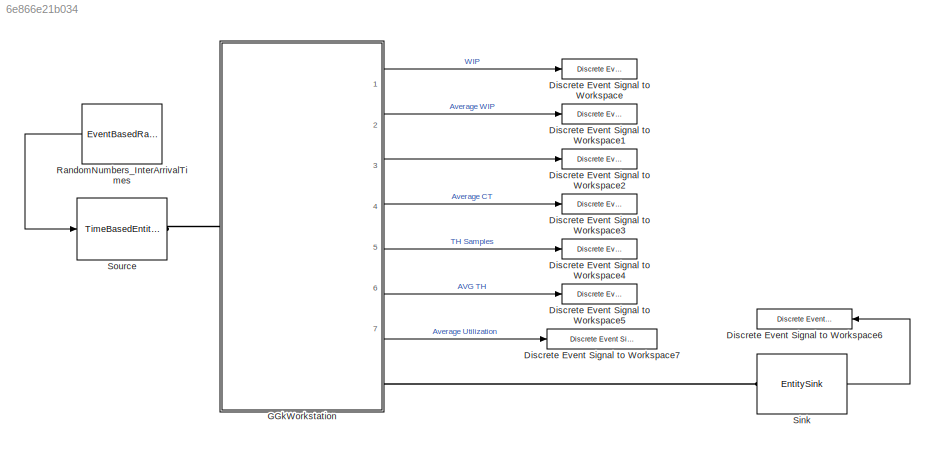
MODEL slx_6e866e21b034
KIND model
CONFIG AbsTol = auto
CONFIG FixedStep = auto
CONFIG InitFcn = se_randomizeseeds(gcs, 'Mode', 'All')
CONFIG MaxStep = auto
CONFIG MinStep = auto
CONFIG RelTol = 1e-3
CONFIG SampleTimeConstraint = Unconstrained
CONFIG Solver = ode45
CONFIG SolverMode = Auto
CONFIG SolverName = ode45
CONFIG StartTime = 0.0
CONFIG StopTime = 500000
BLOCK [Reference] Discrete Event Signal to Workspace  REF=simeventslib/SimEvents
Sinks/Discrete Event Signal
to Workspace
  Decimation = 1
  MaxDataPoints = inf
  Ports = [1]
  SaveFormat = Structure With Time
  SourceBlock = simeventslib/SimEvents\nSinks/Discrete Event Signal\nto Workspace
  SourceType = Discrete Event Signal to Workspace
  VariableName = WIP_samples
  isMonitorOnly = off
  isRecordIC = off
BLOCK [Reference] Discrete Event Signal to Workspace1  REF=simeventslib/SimEvents
Sinks/Discrete Event Signal
to Workspace
  Decimation = 1
  MaxDataPoints = inf
  Ports = [1]
  SaveFormat = Structure With Time
  SourceBlock = simeventslib/SimEvents\nSinks/Discrete Event Signal\nto Workspace
  SourceType = Discrete Event Signal to Workspace
  VariableName = WIP_average
  isMonitorOnly = off
  isRecordIC = off
BLOCK [Reference] Discrete Event Signal to Workspace2  REF=simeventslib/SimEvents
Sinks/Discrete Event Signal
to Workspace
  Decimation = 1
  MaxDataPoints = inf
  Ports = [1]
  SaveFormat = Structure With Time
  SourceBlock = simeventslib/SimEvents\nSinks/Discrete Event Signal\nto Workspace
  SourceType = Discrete Event Signal to Workspace
  VariableName = CT_samples
  isMonitorOnly = off
  isRecordIC = off
BLOCK [Reference] Discrete Event Signal to Workspace3  REF=simeventslib/SimEvents
Sinks/Discrete Event Signal
to Workspace
  Decimation = 1
  MaxDataPoints = inf
  Ports = [1]
  SaveFormat = Structure With Time
  SourceBlock = simeventslib/SimEvents\nSinks/Discrete Event Signal\nto Workspace
  SourceType = Discrete Event Signal to Workspace
  VariableName = CT_average
  isMonitorOnly = off
  isRecordIC = off
BLOCK [Reference] Discrete Event Signal to Workspace4  REF=simeventslib/SimEvents
Sinks/Discrete Event Signal
to Workspace
  Decimation = 1
  MaxDataPoints = inf
  Ports = [1]
  SaveFormat = Structure With Time
  SourceBlock = simeventslib/SimEvents\nSinks/Discrete Event Signal\nto Workspace
  SourceType = Discrete Event Signal to Workspace
  VariableName = TH_samples
  isMonitorOnly = off
  isRecordIC = off
BLOCK [Reference] Discrete Event Signal to Workspace5  REF=simeventslib/SimEvents
Sinks/Discrete Event Signal
to Workspace
  Decimation = 1
  MaxDataPoints = inf
  Ports = [1]
  SaveFormat = Structure With Time
  SourceBlock = simeventslib/SimEvents\nSinks/Discrete Event Signal\nto Workspace
  SourceType = Discrete Event Signal to Workspace
  VariableName = TH_average
  isMonitorOnly = off
  isRecordIC = off
BLOCK [Reference] Discrete Event Signal to Workspace6  REF=simeventslib/SimEvents
Sinks/Discrete Event Signal
to Workspace
  Decimation = 1
  MaxDataPoints = inf
  Ports = [1]
  SaveFormat = Structure With Time
  SourceBlock = simeventslib/SimEvents\nSinks/Discrete Event Signal\nto Workspace
  SourceType = Discrete Event Signal to Workspace
  VariableName = nDepartures
  isMonitorOnly = off
  isRecordIC = off
BLOCK [Reference] Discrete Event Signal to Workspace7  REF=simeventslib/SimEvents
Sinks/Discrete Event Signal
to Workspace
  Decimation = 1
  MaxDataPoints = inf
  Ports = [1]
  SaveFormat = Structure With Time
  SourceBlock = simeventslib/SimEvents\nSinks/Discrete Event Signal\nto Workspace
  SourceType = Discrete Event Signal to Workspace
  VariableName = uServers_average
  isMonitorOnly = off
  isRecordIC = off
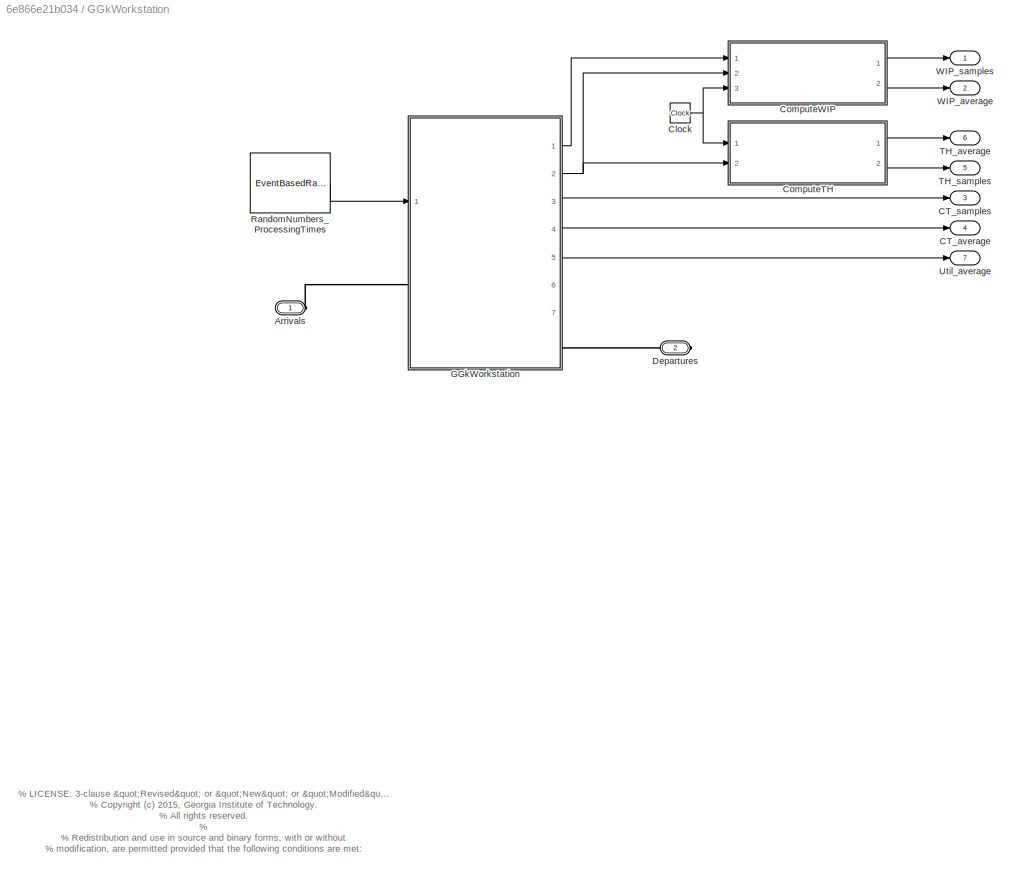
BLOCK [SubSystem] GGkWorkstation
  CopyFcn = set_param(gcb, 'LinkStatus', 'none');
  InitFcn = se_randomizeseeds(gcs, 'Mode', 'All')
  Ports = [0, 7, 0, 0, 0, 1, 1]
  RequestExecContextInheritance = off
BLOCK [PMIOPort] GGkWorkstation/Arrivals
  Port = 1
  Side = Left
BLOCK [Outport] GGkWorkstation/CT_average
  IconDisplay = Port number
  Port = 4
BLOCK [Outport] GGkWorkstation/CT_samples
  IconDisplay = Port number
  Port = 3
BLOCK [Clock] GGkWorkstation/Clock
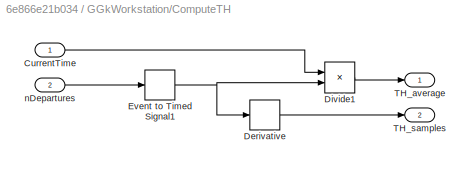
BLOCK [SubSystem] GGkWorkstation/ComputeTH
  Ports = [2, 2]
  RequestExecContextInheritance = off
BLOCK [Inport] GGkWorkstation/ComputeTH/CurrentTime
  IconDisplay = Port number
BLOCK [Derivative] GGkWorkstation/ComputeTH/Derivative
BLOCK [Product] GGkWorkstation/ComputeTH/Divide1
  InputSameDT = off
  Inputs = /*
  OutDataTypeStr = Inherit: Inherit via internal rule
  Ports = [2, 1]
  RndMeth = Floor
  SaturateOnIntegerOverflow = off
BLOCK [EventToTimedSignal] GGkWorkstation/ComputeTH/Event to Timed Signal1
  InputPortMap = u0
  OutputPortMap = o0
  Ports = [1, 1]
BLOCK [Outport] GGkWorkstation/ComputeTH/TH_average
  IconDisplay = Port number
BLOCK [Outport] GGkWorkstation/ComputeTH/TH_samples
  IconDisplay = Port number
  Port = 2
BLOCK [Inport] GGkWorkstation/ComputeTH/nDepartures
  IconDisplay = Port number
  Port = 2
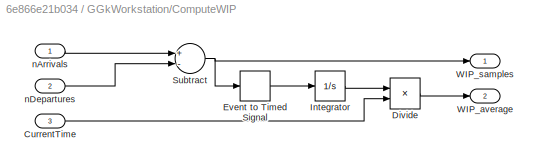
BLOCK [SubSystem] GGkWorkstation/ComputeWIP
  Ports = [3, 2]
  RequestExecContextInheritance = off
BLOCK [Inport] GGkWorkstation/ComputeWIP/CurrentTime
  IconDisplay = Port number
  Port = 3
BLOCK [Product] GGkWorkstation/ComputeWIP/Divide
  InputSameDT = off
  Inputs = */
  OutDataTypeStr = Inherit: Inherit via internal rule
  Ports = [2, 1]
  RndMeth = Floor
  SaturateOnIntegerOverflow = off
BLOCK [EventToTimedSignal] GGkWorkstation/ComputeWIP/Event to Timed Signal
  InputPortMap = u0
  OutputPortMap = o0
  Ports = [1, 1]
BLOCK [Integrator] GGkWorkstation/ComputeWIP/Integrator
  Ports = [1, 1]
BLOCK [Sum] GGkWorkstation/ComputeWIP/Subtract
  InputSameDT = off
  Inputs = +-
  OutDataTypeStr = Inherit: Inherit via internal rule
  Ports = [2, 1]
  SaturateOnIntegerOverflow = off
BLOCK [Outport] GGkWorkstation/ComputeWIP/WIP_average
  IconDisplay = Port number
  Port = 2
BLOCK [Outport] GGkWorkstation/ComputeWIP/WIP_samples
  IconDisplay = Port number
BLOCK [Inport] GGkWorkstation/ComputeWIP/nArrivals
  IconDisplay = Port number
BLOCK [Inport] GGkWorkstation/ComputeWIP/nDepartures
  IconDisplay = Port number
  Port = 2
BLOCK [PMIOPort] GGkWorkstation/Departures
  Port = 2
  Side = Right
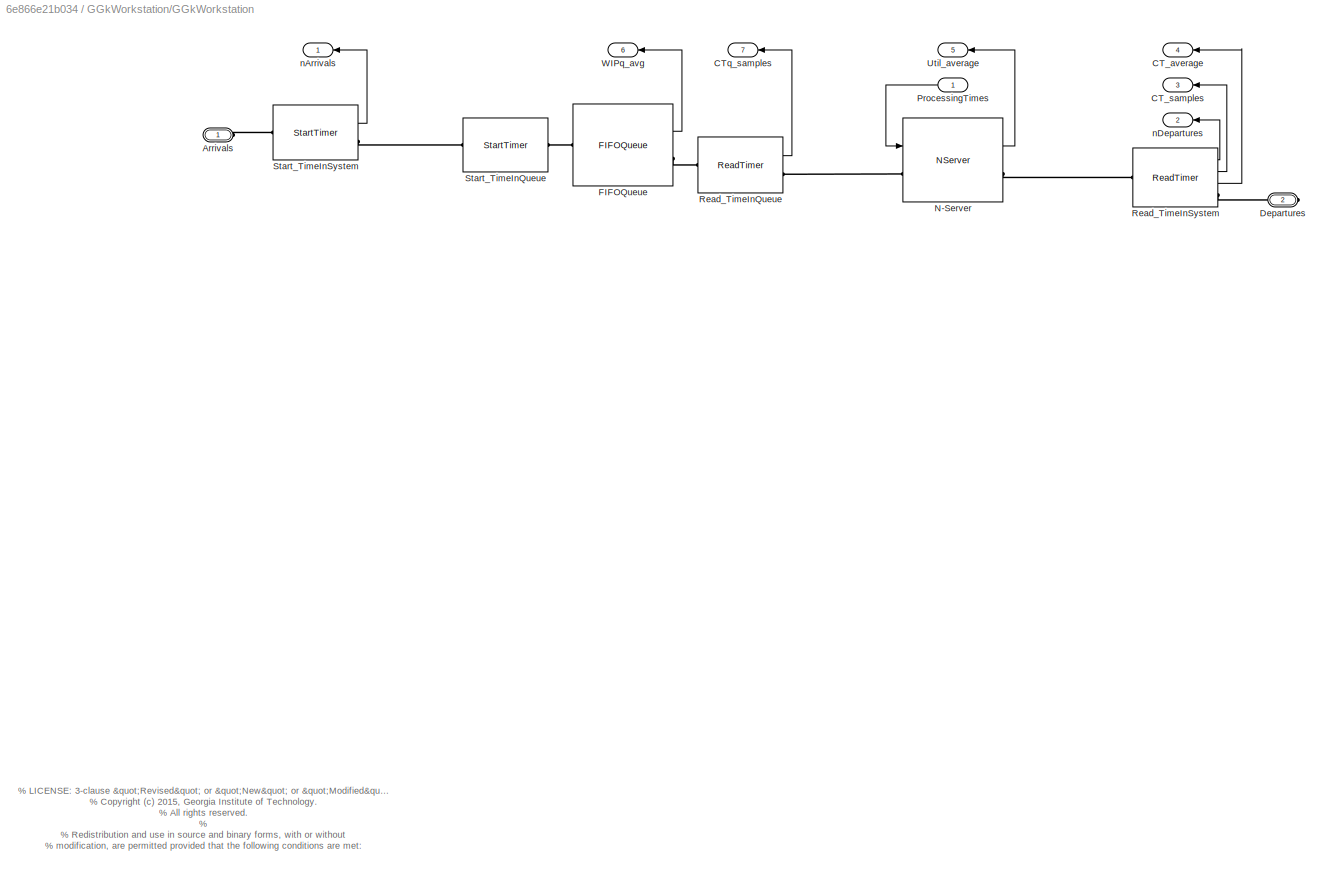
BLOCK [SubSystem] GGkWorkstation/GGkWorkstation
  Ports = [1, 7, 0, 0, 0, 1, 1]
  RequestExecContextInheritance = off
BLOCK [PMIOPort] GGkWorkstation/GGkWorkstation/Arrivals
  Port = 1
  Side = Left
BLOCK [Outport] GGkWorkstation/GGkWorkstation/CT_average
  IconDisplay = Port number
  Port = 4
BLOCK [Outport] GGkWorkstation/GGkWorkstation/CT_samples
  IconDisplay = Port number
  Port = 3
BLOCK [Outport] GGkWorkstation/GGkWorkstation/CTq_samples
  IconDisplay = Port number
  Port = 7
BLOCK [PMIOPort] GGkWorkstation/GGkWorkstation/Departures
  Port = 2
  Side = Right
BLOCK [FIFOQueue] GGkWorkstation/GGkWorkstation/FIFOQueue
  Capacity = Capacity
  OutputPortMap = o3
  Ports = [0, 1, 0, 0, 0, 1, 1]
  StatAverageQueueLength = on
BLOCK [NServer] GGkWorkstation/GGkWorkstation/N-Server
  InputPortMap = u0
  NumberOfServers = NumberOfServers
  OutputPortMap = o5
  Ports = [1, 1, 0, 0, 0, 1, 1]
  ServiceTimeFrom = Signal port t
  StatUtilization = on
BLOCK [Inport] GGkWorkstation/GGkWorkstation/ProcessingTimes
  IconDisplay = Port number
BLOCK [ReadTimer] GGkWorkstation/GGkWorkstation/Read_TimeInQueue
  OutputPortMap = o2
  Ports = [0, 1, 0, 0, 0, 1, 1]
  StatTimeElapsed = on
  TimerTag = TimeInQueue
BLOCK [ReadTimer] GGkWorkstation/GGkWorkstation/Read_TimeInSystem
  OutputPortMap = o0,o2,o3
  Ports = [0, 3, 0, 0, 0, 1, 1]
  StatAverageTimeElapsed = on
  StatNumberDeparted = on
  StatTimeElapsed = on
  TimerTag = TimeInSystem
BLOCK [StartTimer] GGkWorkstation/GGkWorkstation/Start_TimeInQueue
  Ports = [0, 0, 0, 0, 0, 1, 1]
  TimerStartedOption = Restart
  TimerTag = TimeInQueue
BLOCK [StartTimer] GGkWorkstation/GGkWorkstation/Start_TimeInSystem
  OutputPortMap = o0
  Ports = [0, 1, 0, 0, 0, 1, 1]
  StatNumberDeparted = on
  TimerStartedOption = Restart
  TimerTag = TimeInSystem
BLOCK [Outport] GGkWorkstation/GGkWorkstation/Util_average
  IconDisplay = Port number
  Port = 5
BLOCK [Outport] GGkWorkstation/GGkWorkstation/WIPq_avg
  IconDisplay = Port number
  Port = 6
BLOCK [Outport] GGkWorkstation/GGkWorkstation/nArrivals
  IconDisplay = Port number
BLOCK [Outport] GGkWorkstation/GGkWorkstation/nDepartures
  IconDisplay = Port number
  Port = 2
BLOCK [EventBasedRandomNumber] GGkWorkstation/RandomNumbers_ProcessingTimes
  Distribution = Lognormal
  OutputPortMap = o0
  Ports = [0, 1]
  Seed = 42055
  cdfVecCont = 40
  maxBeta = 40
  maxTri = 40
  maxUnid = 40
  maxUnif = 40
  meanExp = 90
  meanNorm = 95
  meanPoiss = 40
  minBeta = 40
  minTri = 40
  minUnid = 40
  minUnif = 40
  modeTri = 40
  numTrialBino = 40
  numValueUnid = 40
  pOneBern = 40
  pSuccessBino = 40
  pSuccessGeo = 40
  probVecDisc = 40
  scaleGam = 40
  scaleLogl = 40
  scaleLogn = 2.246
  scaleWbl = 40
  shape1Beta = 40
  shape2Beta = 40
  shapeGam = 40
  shapeLogn = 1.395
  shapeWbl = 40
  stdNorm = eps
  thresholdGam = 40
  thresholdLogl = 40
  thresholdWbl = 40
  valueVecCont = 40
  valueVecDisc = 40
BLOCK [Outport] GGkWorkstation/TH_average
  IconDisplay = Port number
  Port = 6
BLOCK [Outport] GGkWorkstation/TH_samples
  IconDisplay = Port number
  Port = 5
BLOCK [Outport] GGkWorkstation/Util_average
  IconDisplay = Port number
  Port = 7
BLOCK [Outport] GGkWorkstation/WIP_average
  IconDisplay = Port number
  Port = 2
BLOCK [Outport] GGkWorkstation/WIP_samples
  IconDisplay = Port number
BLOCK [EventBasedRandomNumber] RandomNumbers_InterArrivalTimes
  OutputPortMap = o0
  Ports = [0, 1]
  Seed = 45272
  meanExp = 1/0.2
  meanNorm = 100
  scaleGam = 10
  stdNorm = eps
BLOCK [EntitySink] Sink
  OutputPortMap = o0
  Ports = [0, 1, 0, 0, 0, 1]
  StatNumberArrived = on
BLOCK [TimeBasedEntityGenerator] Source
  GenerateEntitiesUpon = Intergeneration time from port t
  InputPortMap = u0
  Ports = [1, 0, 0, 0, 0, 0, 1]
ANNOTATION GGkWorkstation: % LICENSE: 3-clause "Revised" or "New" or "Modified" BSD License. % <copyright redacted>
ANNOTATION GGkWorkstation/GGkWorkstation: % LICENSE: 3-clause "Revised" or "New" or "Modified" BSD License. % <copyright redacted>
NET GGkWorkstation/Clock:1 -> GGkWorkstation/ComputeTH:1, GGkWorkstation/ComputeWIP:3
LINE GGkWorkstation/ComputeTH/CurrentTime:1 -> GGkWorkstation/ComputeTH/Divide1:1
LINE GGkWorkstation/ComputeTH/Derivative:1 -> GGkWorkstation/ComputeTH/TH_samples:1
LINE GGkWorkstation/ComputeTH/Divide1:1 -> GGkWorkstation/ComputeTH/TH_average:1
NET GGkWorkstation/ComputeTH/Event to Timed Signal1:1 -> GGkWorkstation/ComputeTH/Derivative:1, GGkWorkstation/ComputeTH/Divide1:2
LINE GGkWorkstation/ComputeTH/nDepartures:1 -> GGkWorkstation/ComputeTH/Event to Timed Signal1:1
LINE GGkWorkstation/ComputeTH:1 -> GGkWorkstation/TH_average:1
LINE GGkWorkstation/ComputeTH:2 -> GGkWorkstation/TH_samples:1
LINE GGkWorkstation/ComputeWIP/CurrentTime:1 -> GGkWorkstation/ComputeWIP/Divide:2
LINE GGkWorkstation/ComputeWIP/Divide:1 -> GGkWorkstation/ComputeWIP/WIP_average:1
LINE GGkWorkstation/ComputeWIP/Event to Timed Signal:1 -> GGkWorkstation/ComputeWIP/Integrator:1
LINE GGkWorkstation/ComputeWIP/Integrator:1 -> GGkWorkstation/ComputeWIP/Divide:1
NET GGkWorkstation/ComputeWIP/Subtract:1 -> GGkWorkstation/ComputeWIP/Event to Timed Signal:1, GGkWorkstation/ComputeWIP/WIP_samples:1
LINE GGkWorkstation/ComputeWIP/nArrivals:1 -> GGkWorkstation/ComputeWIP/Subtract:1
LINE GGkWorkstation/ComputeWIP/nDepartures:1 -> GGkWorkstation/ComputeWIP/Subtract:2
LINE GGkWorkstation/ComputeWIP:1 -> GGkWorkstation/WIP_samples:1
LINE GGkWorkstation/ComputeWIP:2 -> GGkWorkstation/WIP_average:1
LINE GGkWorkstation/GGkWorkstation/FIFOQueue:1 -> GGkWorkstation/GGkWorkstation/WIPq_avg:1
LINE GGkWorkstation/GGkWorkstation/N-Server:1 -> GGkWorkstation/GGkWorkstation/Util_average:1
LINE GGkWorkstation/GGkWorkstation/ProcessingTimes:1 -> GGkWorkstation/GGkWorkstation/N-Server:1
LINE GGkWorkstation/GGkWorkstation/Read_TimeInQueue:1 -> GGkWorkstation/GGkWorkstation/CTq_samples:1
LINE GGkWorkstation/GGkWorkstation/Read_TimeInSystem:1 -> GGkWorkstation/GGkWorkstation/nDepartures:1
LINE GGkWorkstation/GGkWorkstation/Read_TimeInSystem:2 -> GGkWorkstation/GGkWorkstation/CT_samples:1
LINE GGkWorkstation/GGkWorkstation/Read_TimeInSystem:3 -> GGkWorkstation/GGkWorkstation/CT_average:1
LINE GGkWorkstation/GGkWorkstation/Start_TimeInSystem:1 -> GGkWorkstation/GGkWorkstation/nArrivals:1
LINE GGkWorkstation/GGkWorkstation:1 -> GGkWorkstation/ComputeWIP:1
NET GGkWorkstation/GGkWorkstation:2 -> GGkWorkstation/ComputeTH:2, GGkWorkstation/ComputeWIP:2
LINE GGkWorkstation/GGkWorkstation:3 -> GGkWorkstation/CT_samples:1
LINE GGkWorkstation/GGkWorkstation:4 -> GGkWorkstation/CT_average:1
LINE GGkWorkstation/GGkWorkstation:5 -> GGkWorkstation/Util_average:1
LINE GGkWorkstation/RandomNumbers_ProcessingTimes:1 -> GGkWorkstation/GGkWorkstation:1
LINE GGkWorkstation:1 -> Discrete Event Signal to Workspace:1
LINE GGkWorkstation:2 -> Discrete Event Signal to Workspace1:1
LINE GGkWorkstation:3 -> Discrete Event Signal to Workspace2:1
LINE GGkWorkstation:4 -> Discrete Event Signal to Workspace3:1
LINE GGkWorkstation:5 -> Discrete Event Signal to Workspace4:1
LINE GGkWorkstation:6 -> Discrete Event Signal to Workspace5:1
LINE GGkWorkstation:7 -> Discrete Event Signal to Workspace7:1
LINE RandomNumbers_InterArrivalTimes:1 -> Source:1
LINE Sink:1 -> Discrete Event Signal to Workspace6:1
PLINE GGkWorkstation/Arrivals:RConn1 -- GGkWorkstation/GGkWorkstation:LConn1
PLINE GGkWorkstation/Departures:RConn1 -- GGkWorkstation/GGkWorkstation:RConn1
PLINE GGkWorkstation/GGkWorkstation/Arrivals:RConn1 -- GGkWorkstation/GGkWorkstation/Start_TimeInSystem:LConn1
PLINE GGkWorkstation/GGkWorkstation/Departures:RConn1 -- GGkWorkstation/GGkWorkstation/Read_TimeInSystem:RConn1
PLINE GGkWorkstation/GGkWorkstation/FIFOQueue:LConn1 -- GGkWorkstation/GGkWorkstation/Start_TimeInQueue:RConn1
PLINE GGkWorkstation/GGkWorkstation/FIFOQueue:RConn1 -- GGkWorkstation/GGkWorkstation/Read_TimeInQueue:LConn1
PLINE GGkWorkstation/GGkWorkstation/N-Server:LConn1 -- GGkWorkstation/GGkWorkstation/Read_TimeInQueue:RConn1
PLINE GGkWorkstation/GGkWorkstation/N-Server:RConn1 -- GGkWorkstation/GGkWorkstation/Read_TimeInSystem:LConn1
PLINE GGkWorkstation/GGkWorkstation/Start_TimeInQueue:LConn1 -- GGkWorkstation/GGkWorkstation/Start_TimeInSystem:RConn1
PLINE GGkWorkstation:LConn1 -- Source:RConn1
PLINE GGkWorkstation:RConn1 -- Sink:LConn1
note: NET lines group one-source signal fan-out (src -> all destinations, sorted); 1:1 wires keep LINE
